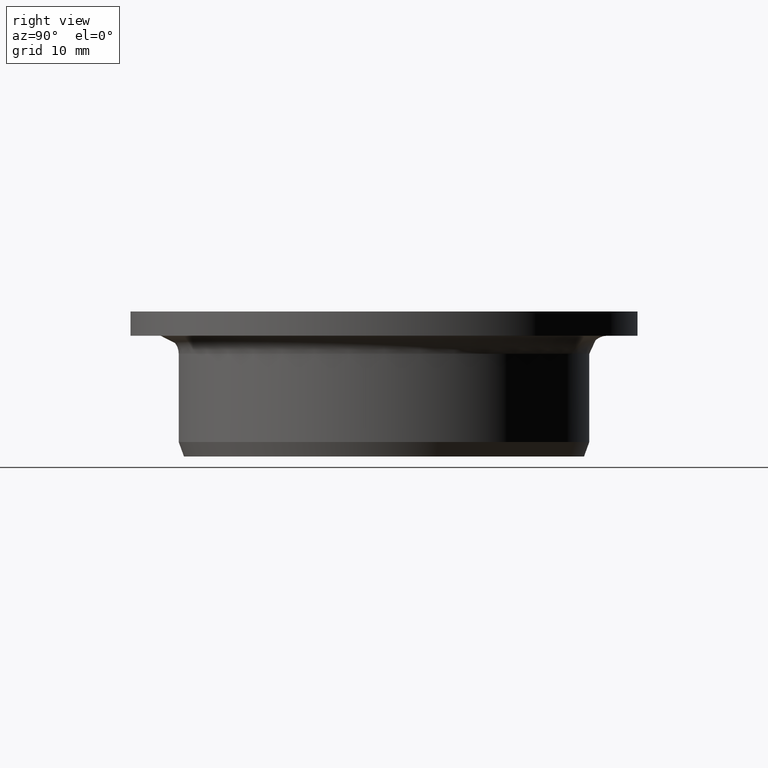
[diagram: clean part render]
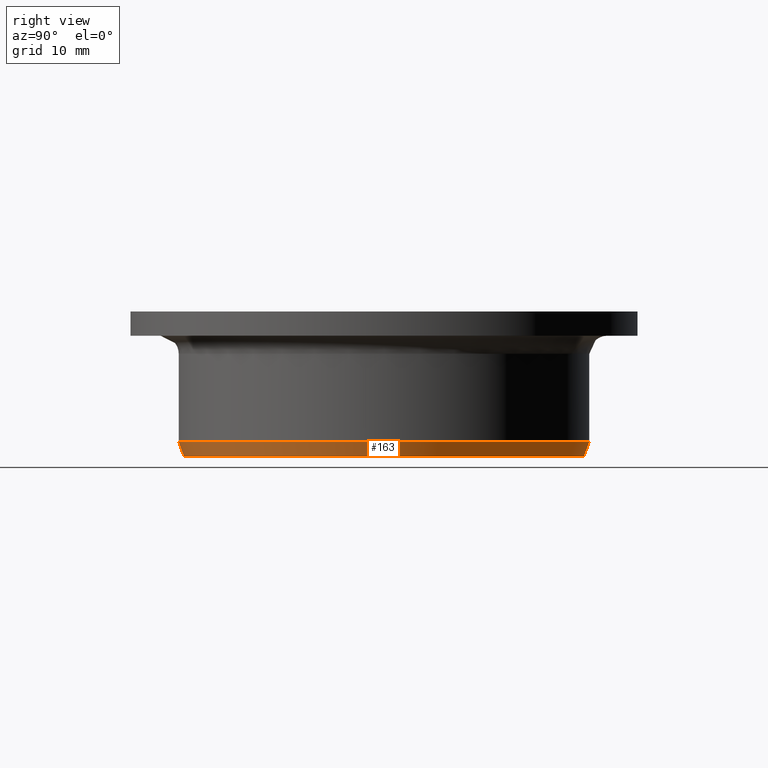
[diagram: same view with one face highlighted and labeled with its STEP entity id]
A machine part, right view. The second image highlights one B-rep face of the part: STEP entity #163.
In plain terms, the highlighted conical surface has half-angle 20 deg.
Its self-contained STEP definition (entity closure, byte-faithful):
#163=ADVANCED_FACE('',(#187),#188,.T.);
#187=FACE_OUTER_BOUND('',#212,.T.);
#188=CONICAL_SURFACE('',#213,0.0165632357188805,0.349065850398864);
#212=EDGE_LOOP('',(#292,#293,#294,#295));
#213=AXIS2_PLACEMENT_3D('',#296,#297,#298);
#292=ORIENTED_EDGE('',*,*,#337,.T.);
#293=ORIENTED_EDGE('',*,*,#341,.T.);
#294=ORIENTED_EDGE('',*,*,#339,.F.);
#295=ORIENTED_EDGE('',*,*,#318,.F.);
#296=CARTESIAN_POINT('',(0.0,0.0,0.0));
#297=DIRECTION('',(-0.0,6.12323399573677E-017,1.0));
#298=DIRECTION('',(0.0,-1.0,6.12323399573677E-017));
#318=EDGE_CURVE('',#353,#355,#356,.T.);
#337=EDGE_CURVE('',#353,#384,#386,.T.);
#339=EDGE_CURVE('',#355,#388,#389,.T.);
#341=EDGE_CURVE('',#384,#388,#391,.T.);
#353=VERTEX_POINT('',#436);
#355=VERTEX_POINT('',#439);
#356=B_SPLINE_CURVE_WITH_KNOTS('',3,(#440,#441,#442,#443),.UNSPECIFIED.,.F.,.F.,(4,4),(2.13095284127158E-007,0.00127882676666374),.UNSPECIFIED.);
#384=VERTEX_POINT('',#512);
#386=CIRCLE('',#515,0.017);
#388=VERTEX_POINT('',#518);
#389=CIRCLE('',#519,0.0165632357188805);
#391=B_SPLINE_CURVE_WITH_KNOTS('',3,(#522,#523,#524,#525),.UNSPECIFIED.,.F.,.F.,(4,4),(2.13095284145049E-007,0.00127882676666374),.UNSPECIFIED.);
#436=CARTESIAN_POINT('',(0.0169918128628632,-0.000527537328953403,0.0012));
#439=CARTESIAN_POINT('',(0.0165570975696529,-0.000450885293833846,6.43083039248804E-019));
#440=CARTESIAN_POINT('',(0.0169918128628631,-0.000527537328953404,0.00120000000000001));
#441=CARTESIAN_POINT('',(0.0168469429093654,-0.000501992847457782,0.000799986874522704));
#442=CARTESIAN_POINT('',(0.0167020387549004,-0.000476442335408855,0.000399986518473315));
#443=CARTESIAN_POINT('',(0.0165570975696529,-0.000450885293833846,1.37650311894562E-017));
#512=CARTESIAN_POINT('',(0.0169918128628631,0.000527537328953404,0.0012));
#515=AXIS2_PLACEMENT_3D('',#560,#561,#562);
#518=CARTESIAN_POINT('',(0.0165570975696529,0.000450885293833846,-2.76087615938118E-020));
#519=AXIS2_PLACEMENT_3D('',#564,#565,#566);
#522=CARTESIAN_POINT('',(0.0169918128628631,0.000527537328953403,0.0012));
#523=CARTESIAN_POINT('',(0.0168469429093654,0.000501992847457781,0.000799986874522691));
#524=CARTESIAN_POINT('',(0.0167020387549004,0.000476442335408854,0.000399986518473308));
#525=CARTESIAN_POINT('',(0.0165570975696529,0.000450885293833846,1.10159267728567E-017));
#560=CARTESIAN_POINT('',(0.0,0.0,0.0012));
#561=DIRECTION('',(0.0,-6.12323399573677E-017,-1.0));
#562=DIRECTION('',(0.0,1.0,-6.12323399573677E-017));
#564=CARTESIAN_POINT('',(0.0,0.0,0.0));
#565=DIRECTION('',(0.0,-6.12323399573677E-017,-1.0));
#566=DIRECTION('',(0.0,1.0,-6.12323399573677E-017));